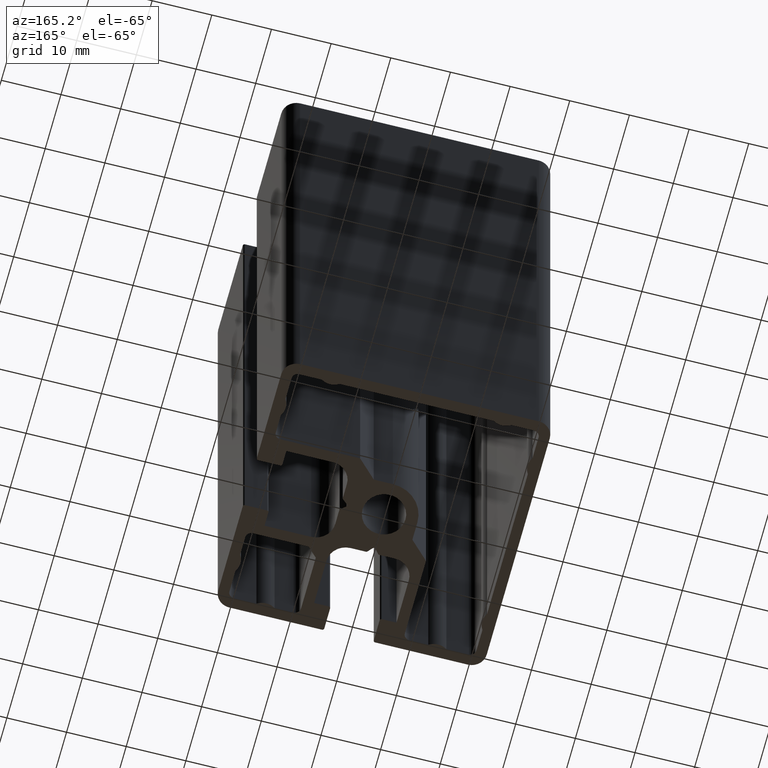
[diagram: clean part render]
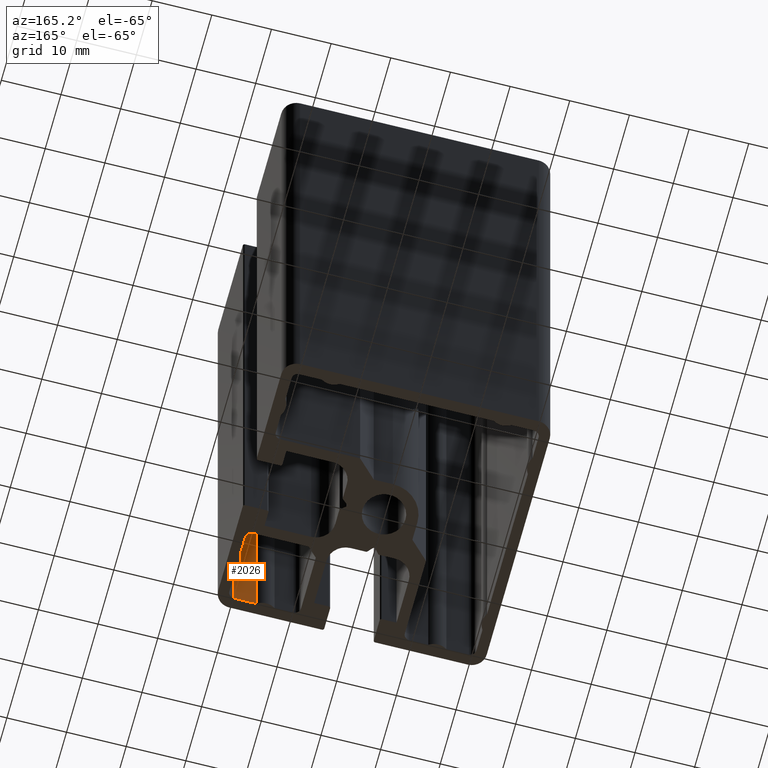
[diagram: same view with one face highlighted and labeled with its STEP entity id]
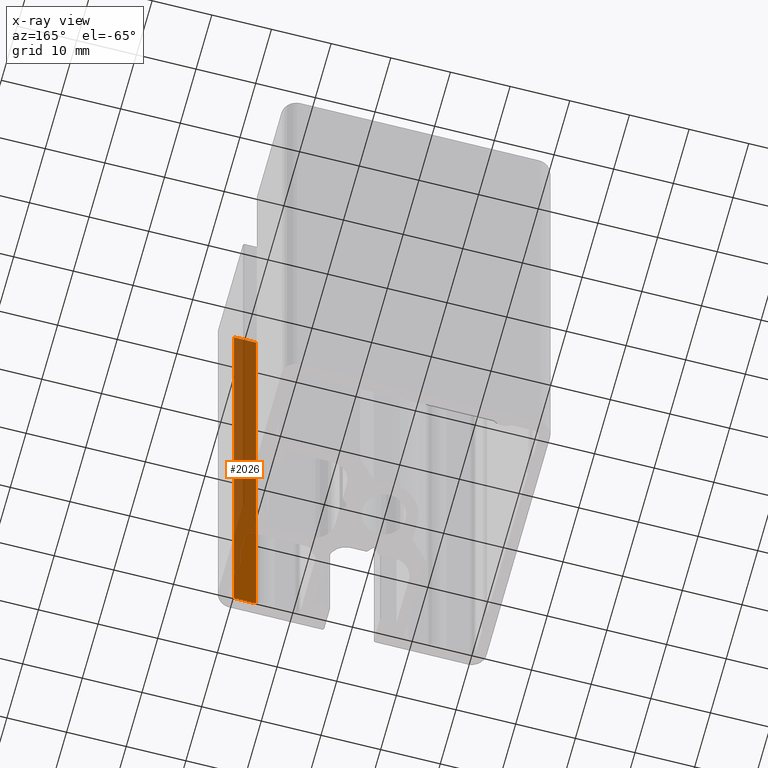
[diagram: x-ray of the same camera — body ghosted, the highlighted face saturated]
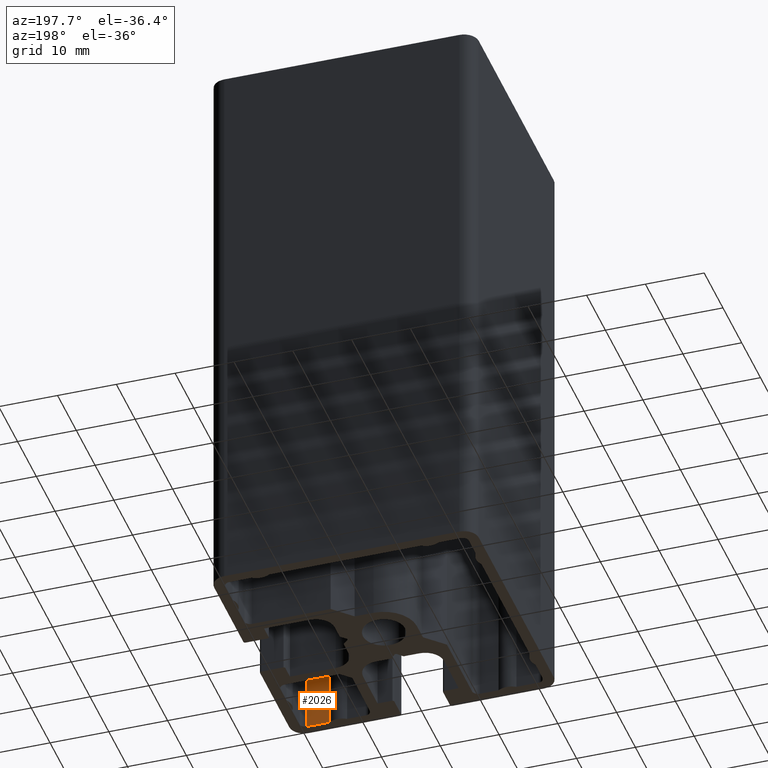
[diagram: same view with one face highlighted and labeled with its STEP entity id]
A machine part, auxiliary view. The second image highlights one B-rep face of the part: STEP entity #2026.
The next image is the same camera in x-ray: the body ghosted, the highlighted face saturated — about 79% of this face is hidden behind the body in this view.
A second angle (auxiliary view) of the same face is appended — the face is thin or edge-on in the first view.
In plain terms, the highlighted planar face has unit normal (0, -1, 0).
Its self-contained STEP definition (entity closure, byte-faithful):
#198=FACE_OUTER_BOUND('',#305,.T.);
#305=EDGE_LOOP('',(#1371,#1372,#1373,#1374));
#425=LINE('',#3039,#627);
#426=LINE('',#3042,#628);
#427=LINE('',#3044,#629);
#428=LINE('',#3045,#630);
#627=VECTOR('',#2398,100.);
#628=VECTOR('',#2401,3.7282175723338);
#629=VECTOR('',#2402,3.7282175723338);
#630=VECTOR('',#2403,100.);
#831=VERTEX_POINT('',#3035);
#832=VERTEX_POINT('',#3037);
#833=VERTEX_POINT('',#3041);
#834=VERTEX_POINT('',#3043);
#1049=EDGE_CURVE('',#832,#831,#425,.T.);
#1050=EDGE_CURVE('',#831,#833,#426,.T.);
#1051=EDGE_CURVE('',#834,#832,#427,.T.);
#1052=EDGE_CURVE('',#834,#833,#428,.T.);
#1371=ORIENTED_EDGE('',*,*,#1050,.F.);
#1372=ORIENTED_EDGE('',*,*,#1049,.F.);
#1373=ORIENTED_EDGE('',*,*,#1051,.F.);
#1374=ORIENTED_EDGE('',*,*,#1052,.T.);
#1970=PLANE('',#2145);
#2026=ADVANCED_FACE('',(#198),#1970,.F.);
#2145=AXIS2_PLACEMENT_3D('',#3040,#2399,#2400);
#2398=DIRECTION('',(0.,0.,1.));
#2399=DIRECTION('center_axis',(9.85086759075873E-13,-1.,0.));
#2400=DIRECTION('ref_axis',(1.,9.85167503131379E-13,0.));
#2401=DIRECTION('',(-1.,-9.85086759075873E-13,0.));
#2402=DIRECTION('',(1.,9.85086759075873E-13,0.));
#2403=DIRECTION('',(0.,0.,1.));
#3035=CARTESIAN_POINT('',(19.7000000000051,-20.6999999999963,100.));
#3037=CARTESIAN_POINT('',(19.7000000000051,-20.6999999999963,0.));
#3039=CARTESIAN_POINT('',(19.7000000000051,-20.6999999999963,0.));
#3040=CARTESIAN_POINT('Origin',(15.9717824276713,-20.7,0.));
#3041=CARTESIAN_POINT('',(15.9717824276713,-20.7,100.));
#3042=CARTESIAN_POINT('',(7.98589121384583,-20.7000000000079,100.));
#3043=CARTESIAN_POINT('',(15.9717824276713,-20.7,0.));
#3044=CARTESIAN_POINT('',(7.98589121384583,-20.7000000000079,0.));
#3045=CARTESIAN_POINT('',(15.9717824276713,-20.7,0.));